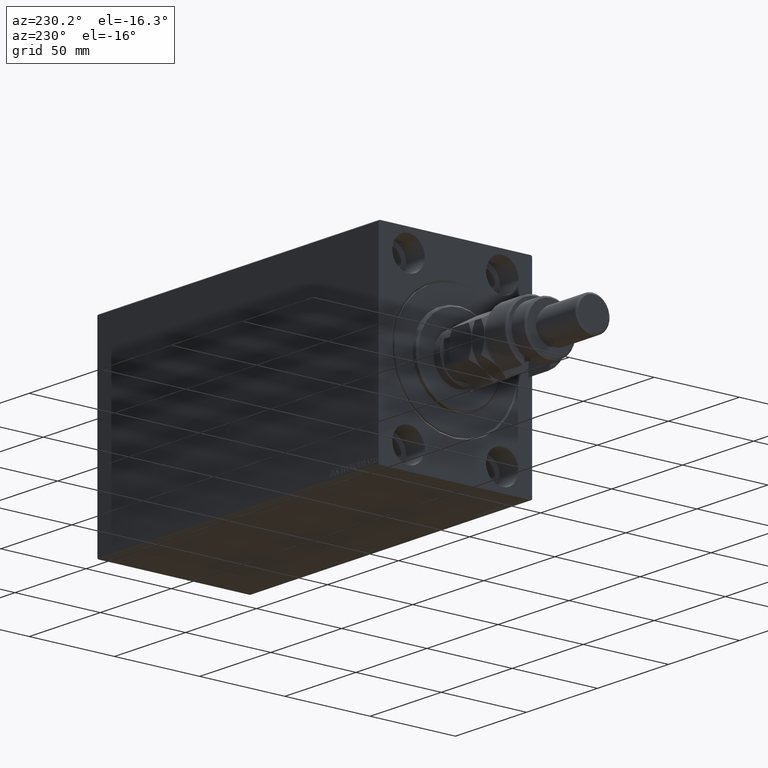
[diagram: clean part render]
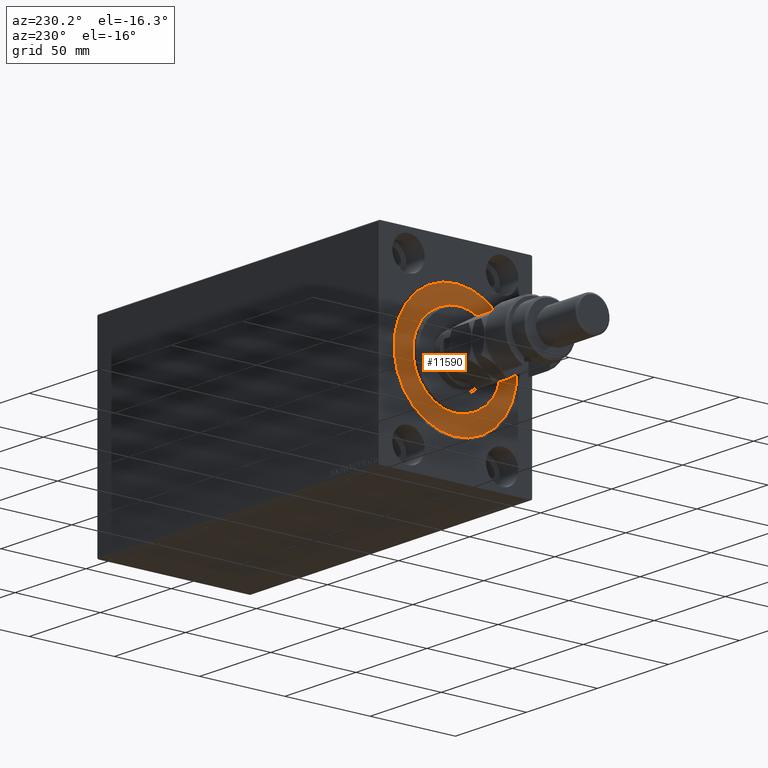
[diagram: same view with one face highlighted and labeled with its STEP entity id]
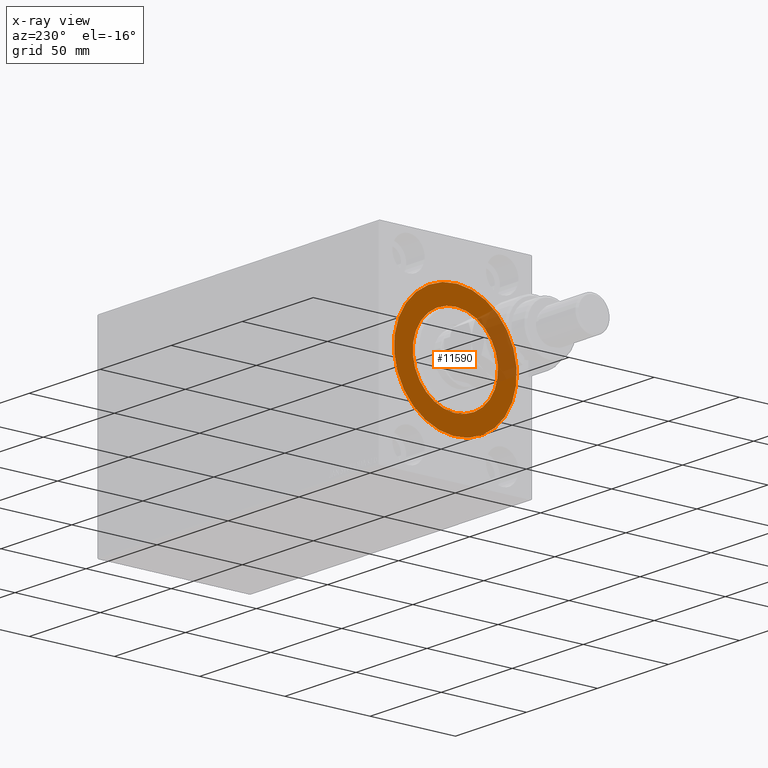
[diagram: x-ray of the same camera — body ghosted, the highlighted face saturated]
A machine part, auxiliary view. The second image highlights one B-rep face of the part: STEP entity #11590.
The next image is the same camera in x-ray: the body ghosted, the highlighted face saturated — about 17% of this face is hidden behind the body in this view.
In plain terms, the highlighted planar face has unit normal (1, 0, -0).
Its self-contained STEP definition (entity closure, byte-faithful):
#336 = FACE_BOUND ( 'NONE', #23111, .T. ) ;
#551 = DIRECTION ( 'NONE',  ( 0.000000000000000000, 0.000000000000000000, -1.000000000000000000 ) ) ;
#754 = AXIS2_PLACEMENT_3D ( 'NONE', #7419, #39478, #551 ) ;
#1596 = ORIENTED_EDGE ( 'NONE', *, *, #33555, .F. ) ;
#4527 = CARTESIAN_POINT ( 'NONE',  ( 0.000000000000000000, 0.000000000000000000, 25.00000000000000000 ) ) ;
#5284 = DIRECTION ( 'NONE',  ( -1.000000000000000000, 0.000000000000000000, 0.000000000000000000 ) ) ;
#7419 = CARTESIAN_POINT ( 'NONE',  ( 0.000000000000000000, 0.000000000000000000, 0.000000000000000000 ) ) ;
#8365 = CARTESIAN_POINT ( 'NONE',  ( 0.000000000000000000, 0.000000000000000000, 0.000000000000000000 ) ) ;
#8596 = DIRECTION ( 'NONE',  ( 0.000000000000000000, 0.000000000000000000, -1.000000000000000000 ) ) ;
#8938 = AXIS2_PLACEMENT_3D ( 'NONE', #37575, #5284, #9062 ) ;
#9062 = DIRECTION ( 'NONE',  ( 0.000000000000000000, 0.000000000000000000, 1.000000000000000000 ) ) ;
#9065 = CIRCLE ( 'NONE', #754, 25.00000000000000000 ) ;
#10725 = EDGE_CURVE ( 'NONE', #29545, #37635, #44119, .T. ) ;
#11590 = ADVANCED_FACE ( 'NONE', ( #336, #11659 ), #40424, .F. ) ;
#11659 = FACE_OUTER_BOUND ( 'NONE', #11996, .T. ) ;
#11996 = EDGE_LOOP ( 'NONE', ( #1596, #13270 ) ) ;
#12834 = DIRECTION ( 'NONE',  ( -1.000000000000000000, 0.000000000000000000, 0.000000000000000000 ) ) ;
#13062 = CARTESIAN_POINT ( 'NONE',  ( 0.000000000000000000, 0.000000000000000000, 0.000000000000000000 ) ) ;
#13270 = ORIENTED_EDGE ( 'NONE', *, *, #22710, .F. ) ;
#20333 = DIRECTION ( 'NONE',  ( 1.000000000000000000, -0.000000000000000000, 0.000000000000000000 ) ) ;
#20941 = CIRCLE ( 'NONE', #8938, 36.00000000000000000 ) ;
#22239 = AXIS2_PLACEMENT_3D ( 'NONE', #34738, #20333, #8596 ) ;
#22474 = CIRCLE ( 'NONE', #27712, 36.00000000000000000 ) ;
#22655 = ORIENTED_EDGE ( 'NONE', *, *, #10725, .F. ) ;
#22710 = EDGE_CURVE ( 'NONE', #45199, #35659, #22474, .T. ) ;
#23111 = EDGE_LOOP ( 'NONE', ( #22655, #41897 ) ) ;
#24380 = CARTESIAN_POINT ( 'NONE',  ( 0.000000000000000000, 0.000000000000000000, -36.00000000000000000 ) ) ;
#27211 = DIRECTION ( 'NONE',  ( 0.000000000000000000, 0.000000000000000000, 1.000000000000000000 ) ) ;
#27712 = AXIS2_PLACEMENT_3D ( 'NONE', #13062, #12834, #27211 ) ;
#29036 = AXIS2_PLACEMENT_3D ( 'NONE', #8365, #40891, #44442 ) ;
#29545 = VERTEX_POINT ( 'NONE', #4527 ) ;
#30619 = CARTESIAN_POINT ( 'NONE',  ( 0.000000000000000000, 3.061616997868383043E-15, -25.00000000000000000 ) ) ;
#33555 = EDGE_CURVE ( 'NONE', #35659, #45199, #20941, .T. ) ;
#34738 = CARTESIAN_POINT ( 'NONE',  ( 0.000000000000000000, 0.000000000000000000, 0.000000000000000000 ) ) ;
#35659 = VERTEX_POINT ( 'NONE', #24380 ) ;
#37575 = CARTESIAN_POINT ( 'NONE',  ( 0.000000000000000000, 0.000000000000000000, 0.000000000000000000 ) ) ;
#37635 = VERTEX_POINT ( 'NONE', #30619 ) ;
#39478 = DIRECTION ( 'NONE',  ( 1.000000000000000000, -0.000000000000000000, 0.000000000000000000 ) ) ;
#40424 = PLANE ( 'NONE',  #29036 ) ;
#40891 = DIRECTION ( 'NONE',  ( -1.000000000000000000, 0.000000000000000000, 0.000000000000000000 ) ) ;
#41313 = EDGE_CURVE ( 'NONE', #37635, #29545, #9065, .T. ) ;
#41897 = ORIENTED_EDGE ( 'NONE', *, *, #41313, .F. ) ;
#44119 = CIRCLE ( 'NONE', #22239, 25.00000000000000000 ) ;
#44442 = DIRECTION ( 'NONE',  ( 0.000000000000000000, 0.000000000000000000, 1.000000000000000000 ) ) ;
#44522 = CARTESIAN_POINT ( 'NONE',  ( 0.000000000000000000, 4.408728476930470856E-15, 36.00000000000000000 ) ) ;
#45199 = VERTEX_POINT ( 'NONE', #44522 ) ;